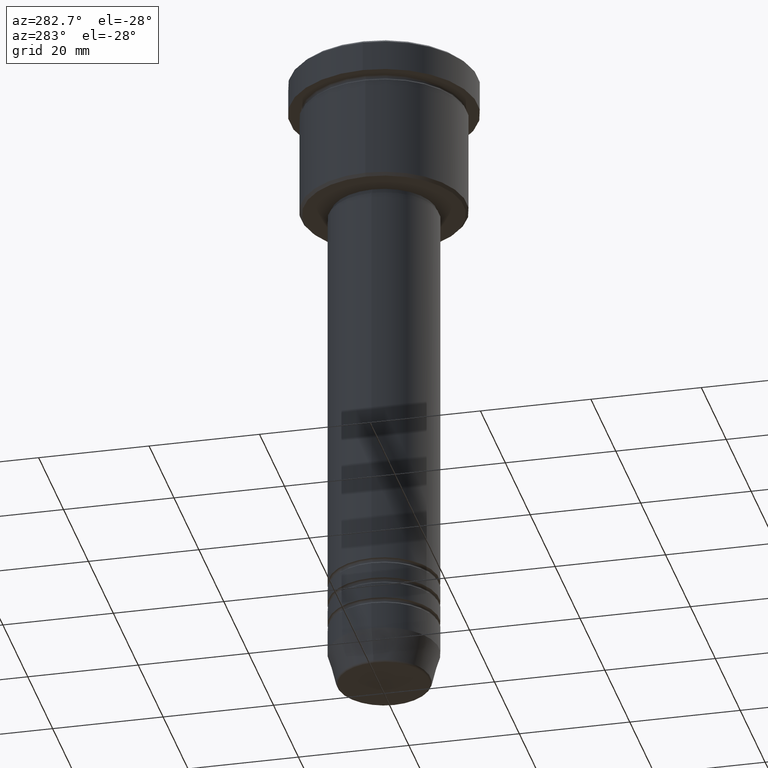
[diagram: clean part render]
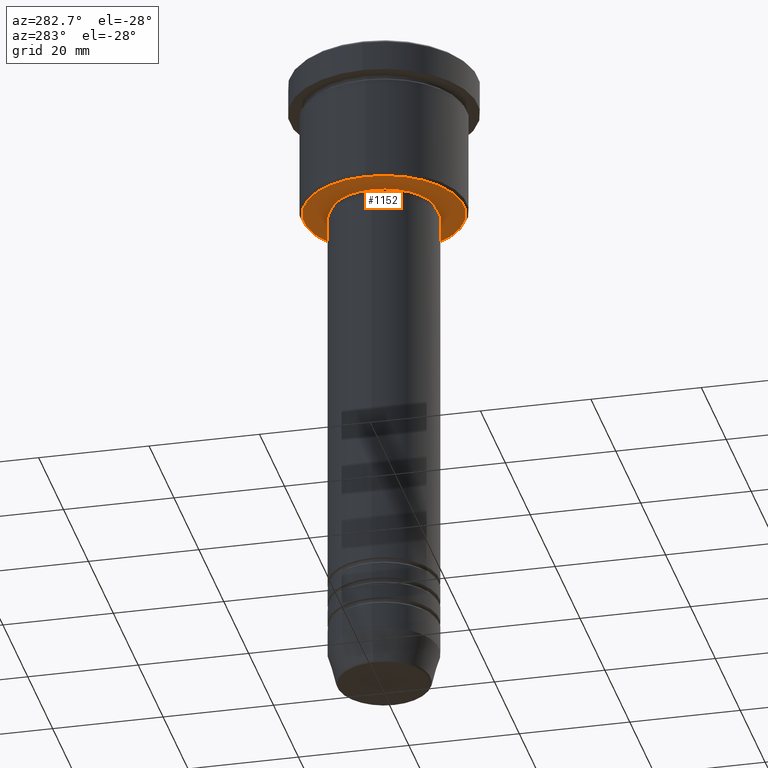
[diagram: same view with one face highlighted and labeled with its STEP entity id]
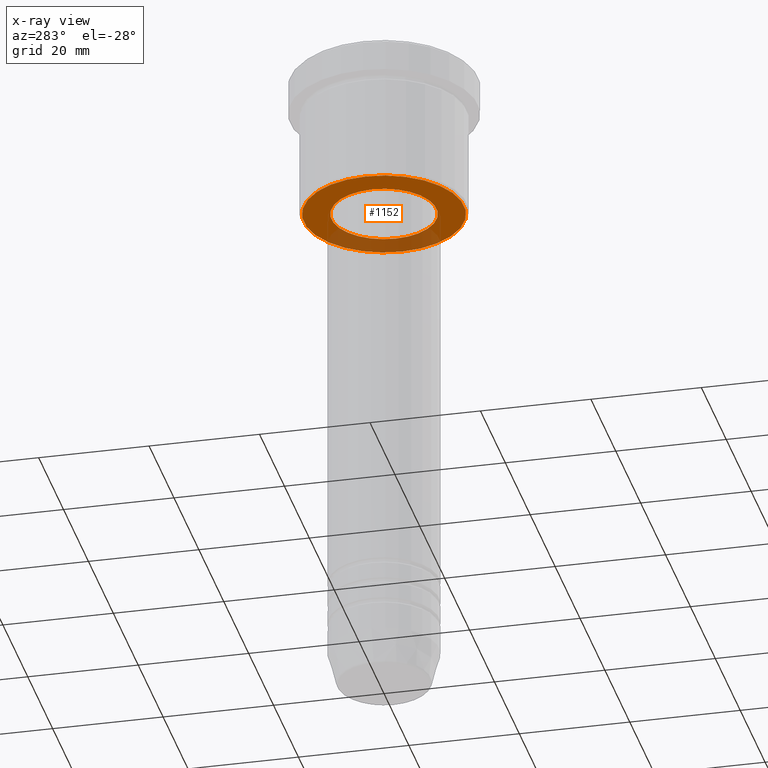
[diagram: x-ray of the same camera — body ghosted, the highlighted face saturated]
A machine part, auxiliary view. The second image highlights one B-rep face of the part: STEP entity #1152.
The next image is the same camera in x-ray: the body ghosted, the highlighted face saturated — about 28% of this face is hidden behind the body in this view.
In plain terms, the highlighted planar face has unit normal (0, 0, -1).
Its self-contained STEP definition (entity closure, byte-faithful):
#5 = EDGE_LOOP ( 'NONE', ( #157, #306 ) ) ;
#11 = VERTEX_POINT ( 'NONE', #1109 ) ;
#16 = AXIS2_PLACEMENT_3D ( 'NONE', #1132, #431, #700 ) ;
#49 = PLANE ( 'NONE',  #16 ) ;
#60 = FACE_OUTER_BOUND ( 'NONE', #488, .T. ) ;
#74 = CARTESIAN_POINT ( 'NONE',  ( 0.000000000000000000, 0.000000000000000000, -26.00000000000000355 ) ) ;
#137 = CIRCLE ( 'NONE', #953, 9.500000000000001776 ) ;
#153 = AXIS2_PLACEMENT_3D ( 'NONE', #787, #878, #960 ) ;
#157 = ORIENTED_EDGE ( 'NONE', *, *, #788, .T. ) ;
#179 = ORIENTED_EDGE ( 'NONE', *, *, #1137, .T. ) ;
#259 = DIRECTION ( 'NONE',  ( 1.000000000000000000, 0.000000000000000000, 0.000000000000000000 ) ) ;
#262 = DIRECTION ( 'NONE',  ( -0.000000000000000000, -0.000000000000000000, 1.000000000000000000 ) ) ;
#286 = CIRCLE ( 'NONE', #153, 14.49999999999995737 ) ;
#287 = DIRECTION ( 'NONE',  ( -1.000000000000000000, 0.000000000000000000, 0.000000000000000000 ) ) ;
#306 = ORIENTED_EDGE ( 'NONE', *, *, #1043, .T. ) ;
#329 = CARTESIAN_POINT ( 'NONE',  ( -14.49999999999995737, 1.806354028742343435E-15, -26.00000000000000355 ) ) ;
#417 = VERTEX_POINT ( 'NONE', #843 ) ;
#418 = CARTESIAN_POINT ( 'NONE',  ( 0.000000000000000000, 0.000000000000000000, -26.00000000000000355 ) ) ;
#431 = DIRECTION ( 'NONE',  ( 0.000000000000000000, 0.000000000000000000, -1.000000000000000000 ) ) ;
#443 = FACE_BOUND ( 'NONE', #5, .T. ) ;
#488 = EDGE_LOOP ( 'NONE', ( #179, #660 ) ) ;
#497 = CARTESIAN_POINT ( 'NONE',  ( 14.49999999999995737, 0.000000000000000000, -26.00000000000000355 ) ) ;
#520 = VERTEX_POINT ( 'NONE', #497 ) ;
#524 = CIRCLE ( 'NONE', #709, 9.500000000000001776 ) ;
#544 = EDGE_CURVE ( 'NONE', #1158, #520, #661, .T. ) ;
#572 = AXIS2_PLACEMENT_3D ( 'NONE', #418, #1102, #287 ) ;
#660 = ORIENTED_EDGE ( 'NONE', *, *, #544, .T. ) ;
#661 = CIRCLE ( 'NONE', #572, 14.49999999999995737 ) ;
#700 = DIRECTION ( 'NONE',  ( -1.000000000000000000, 0.000000000000000000, -0.000000000000000000 ) ) ;
#709 = AXIS2_PLACEMENT_3D ( 'NONE', #722, #262, #259 ) ;
#722 = CARTESIAN_POINT ( 'NONE',  ( 0.000000000000000000, 0.000000000000000000, -26.00000000000000355 ) ) ;
#737 = DIRECTION ( 'NONE',  ( 1.000000000000000000, 0.000000000000000000, 0.000000000000000000 ) ) ;
#787 = CARTESIAN_POINT ( 'NONE',  ( 0.000000000000000000, 0.000000000000000000, -26.00000000000000355 ) ) ;
#788 = EDGE_CURVE ( 'NONE', #11, #417, #137, .T. ) ;
#843 = CARTESIAN_POINT ( 'NONE',  ( -9.500000000000001776, 1.163414459189985682E-15, -26.00000000000000355 ) ) ;
#878 = DIRECTION ( 'NONE',  ( 0.000000000000000000, 0.000000000000000000, -1.000000000000000000 ) ) ;
#953 = AXIS2_PLACEMENT_3D ( 'NONE', #74, #995, #737 ) ;
#960 = DIRECTION ( 'NONE',  ( -1.000000000000000000, 0.000000000000000000, 0.000000000000000000 ) ) ;
#995 = DIRECTION ( 'NONE',  ( -0.000000000000000000, -0.000000000000000000, 1.000000000000000000 ) ) ;
#1043 = EDGE_CURVE ( 'NONE', #417, #11, #524, .T. ) ;
#1102 = DIRECTION ( 'NONE',  ( 0.000000000000000000, 0.000000000000000000, -1.000000000000000000 ) ) ;
#1109 = CARTESIAN_POINT ( 'NONE',  ( 9.500000000000001776, 0.000000000000000000, -26.00000000000000355 ) ) ;
#1132 = CARTESIAN_POINT ( 'NONE',  ( 0.000000000000000000, 15.00000000000000000, -26.00000000000000355 ) ) ;
#1137 = EDGE_CURVE ( 'NONE', #520, #1158, #286, .T. ) ;
#1152 = ADVANCED_FACE ( 'NONE', ( #60, #443 ), #49, .T. ) ;
#1158 = VERTEX_POINT ( 'NONE', #329 ) ;